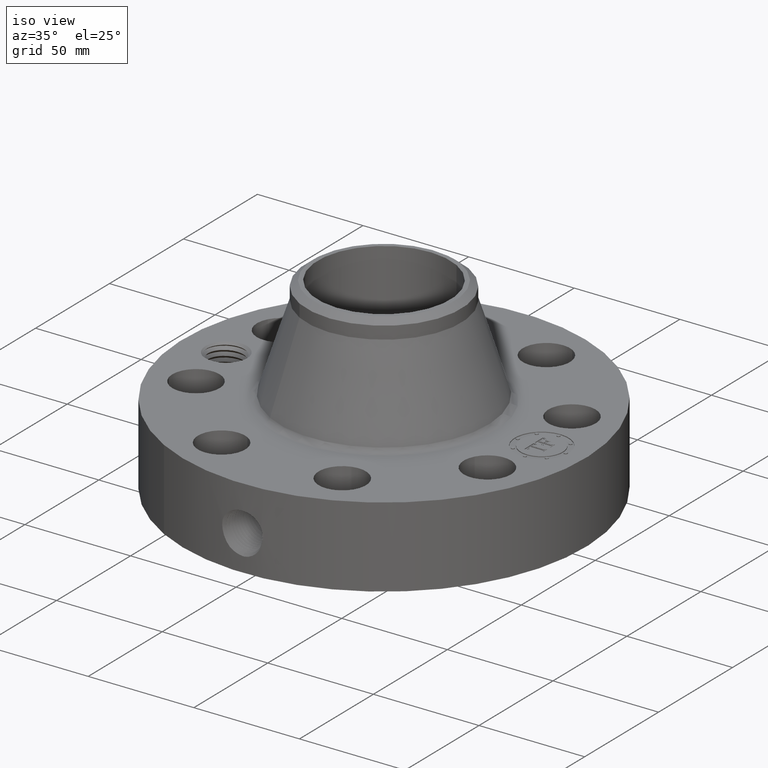
[diagram: clean part render]
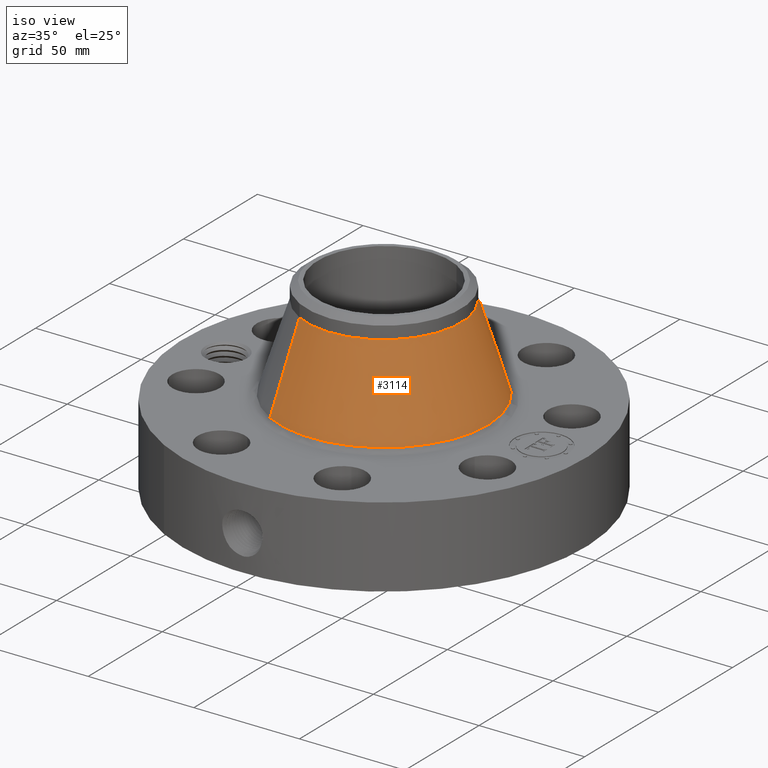
[diagram: same view with one face highlighted and labeled with its STEP entity id]
A machine part, iso view. The second image highlights one B-rep face of the part: STEP entity #3114.
In plain terms, the highlighted conical surface has half-angle 17.642 deg.
Its self-contained STEP definition (entity closure, byte-faithful):
#2358=AXIS2_PLACEMENT_3D('Circle Axis2P3D',#2356,#2357,$) ;
#3087=AXIS2_PLACEMENT_3D('Cone Axis2P3D',#3084,#3085,#3086) ;
#3098=AXIS2_PLACEMENT_3D('Circle Axis2P3D',#3096,#3097,$) ;
#2353=CARTESIAN_POINT('Vertex',(0.93171691789,1.70549637831,1.83363140266)) ;
#2356=CARTESIAN_POINT('Axis2P3D Location',(0.,0.,1.83363140266)) ;
#2360=CARTESIAN_POINT('Vertex',(-0.93171691789,-1.70549637831,1.83363140266)) ;
#3084=CARTESIAN_POINT('Axis2P3D Location',(0.,0.,3.41651327942)) ;
#3089=CARTESIAN_POINT('Line Origine',(0.811044846741,1.48460763372,2.62507234104)) ;
#3093=CARTESIAN_POINT('Vertex',(0.690372775593,1.26371888913,3.41651327942)) ;
#3096=CARTESIAN_POINT('Axis2P3D Location',(0.,0.,3.41651327942)) ;
#3100=CARTESIAN_POINT('Vertex',(-0.690372775593,-1.26371888913,3.41651327942)) ;
#3103=CARTESIAN_POINT('Line Origine',(-0.811044846741,-1.48460763372,2.62507234104)) ;
#2357=DIRECTION('Axis2P3D Direction',(0.,0.,-0.0393700787402)) ;
#3085=DIRECTION('Axis2P3D Direction',(0.,0.,-0.0393700787402)) ;
#3086=DIRECTION('Axis2P3D XDirection',(-0.0188750212049,-0.0345504945626,0.)) ;
#3090=DIRECTION('Vector Direction',(0.00572048371711,0.0104712752064,-0.0375184162992)) ;
#3097=DIRECTION('Axis2P3D Direction',(0.,0.,-0.0393700787402)) ;
#3104=DIRECTION('Vector Direction',(-0.00572048371711,-0.0104712752064,-0.0375184162992)) ;
#3091=VECTOR('Line Direction',#3090,0.0393700787402) ;
#3105=VECTOR('Line Direction',#3104,0.0393700787402) ;
#3109=ORIENTED_EDGE('',*,*,#2362,.F.) ;
#3110=ORIENTED_EDGE('',*,*,#3095,.T.) ;
#3111=ORIENTED_EDGE('',*,*,#3102,.T.) ;
#3112=ORIENTED_EDGE('',*,*,#3107,.F.) ;
#3114=ADVANCED_FACE('PartBody',(#3113),#3088,.T.) ;
#2359=CIRCLE('generated circle',#2358,1.94340276616) ;
#3099=CIRCLE('generated circle',#3098,1.44000000001) ;
#3088=CONICAL_SURFACE('Cone',#3087,1.44000000001,0.307914249943) ;
#2362=EDGE_CURVE('',#2354,#2361,#2359,.T.) ;
#3095=EDGE_CURVE('',#2354,#3094,#3092,.F.) ;
#3102=EDGE_CURVE('',#3094,#3101,#3099,.T.) ;
#3107=EDGE_CURVE('',#2361,#3101,#3106,.F.) ;
#3108=EDGE_LOOP('',(#3109,#3110,#3111,#3112)) ;
#3113=FACE_OUTER_BOUND('',#3108,.T.) ;
#3092=LINE('Line',#3089,#3091) ;
#3106=LINE('Line',#3103,#3105) ;
#2354=VERTEX_POINT('',#2353) ;
#2361=VERTEX_POINT('',#2360) ;
#3094=VERTEX_POINT('',#3093) ;
#3101=VERTEX_POINT('',#3100) ;